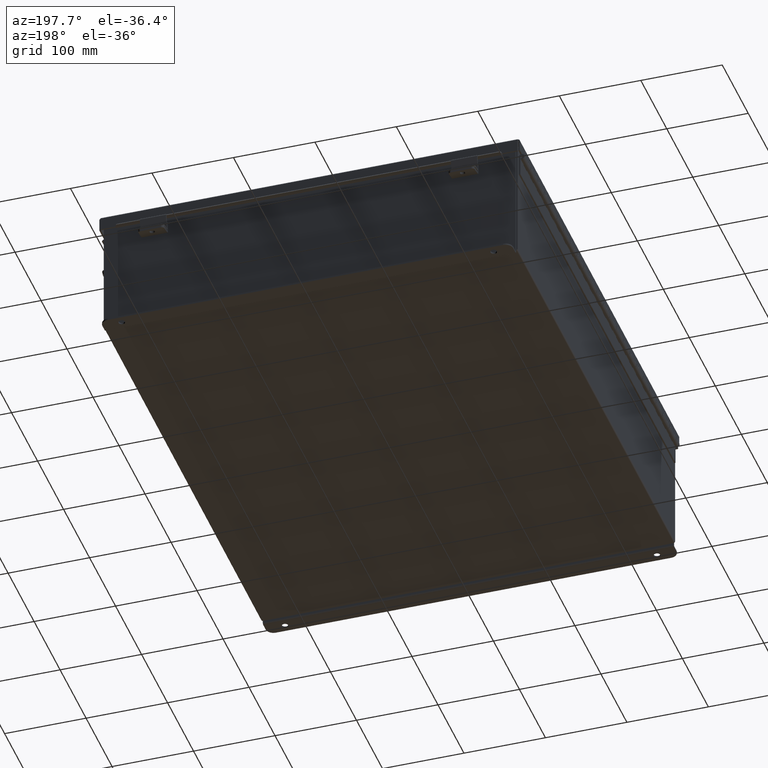
[diagram: clean part render]
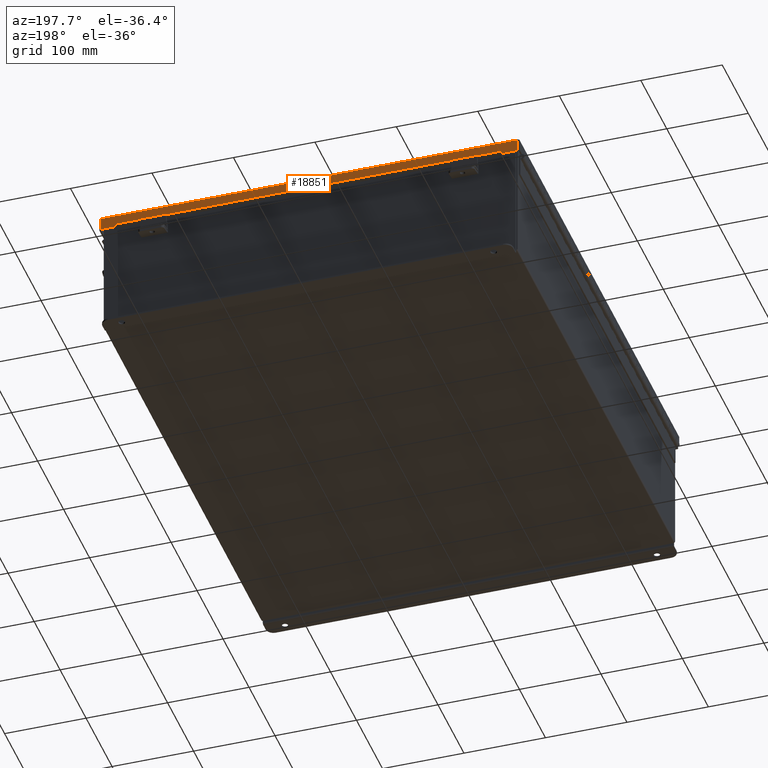
[diagram: same view with one face highlighted and labeled with its STEP entity id]
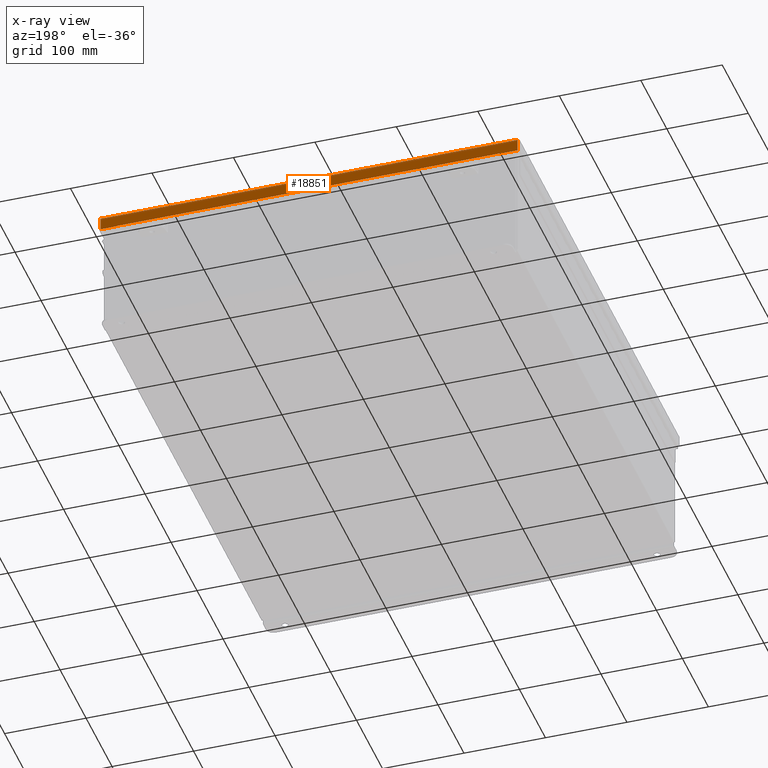
[diagram: x-ray of the same camera — body ghosted, the highlighted face saturated]
A machine part, auxiliary view. The second image highlights one B-rep face of the part: STEP entity #18851.
The next image is the same camera in x-ray: the body ghosted, the highlighted face saturated — about 0% of this face is hidden behind the body in this view.
In plain terms, the highlighted planar face has unit normal (-0, -1, -0).
Its self-contained STEP definition (entity closure, byte-faithful):
#974 = DIRECTION ( 'NONE',  ( 0.0000000000000000000, -3.569293475308526100E-015, -1.000000000000000000 ) ) ;
#1457 = CARTESIAN_POINT ( 'NONE',  ( -2.058720648025389000E-018, 12.15625000000000200, 0.6122999999999997300 ) ) ;
#1652 = VERTEX_POINT ( 'NONE', #7545 ) ;
#1768 = EDGE_CURVE ( 'NONE', #18719, #12512, #19920, .T. ) ;
#2740 = CARTESIAN_POINT ( 'NONE',  ( -10.07447893218813200, 12.15625000000000000, -4.365003746523085300E-014 ) ) ;
#2760 = PLANE ( 'NONE',  #18540 ) ;
#3041 = EDGE_CURVE ( 'NONE', #11271, #21290, #11700, .T. ) ;
#3096 = VECTOR ( 'NONE', #14017, 39.37007874015748100 ) ;
#3362 = ORIENTED_EDGE ( 'NONE', *, *, #1768, .F. ) ;
#3435 = VERTEX_POINT ( 'NONE', #7606 ) ;
#3632 = DIRECTION ( 'NONE',  ( -0.0000000000000000000, 3.569293475308526100E-015, 1.000000000000000000 ) ) ;
#4406 = LINE ( 'NONE', #1457, #9395 ) ;
#4548 = EDGE_CURVE ( 'NONE', #11271, #3435, #12947, .T. ) ;
#4570 = CARTESIAN_POINT ( 'NONE',  ( 9.324478932188135600, 12.15625000000000400, 0.5967115427318809800 ) ) ;
#4646 = DIRECTION ( 'NONE',  ( -1.000000000000000000, -0.0000000000000000000, -0.0000000000000000000 ) ) ;
#4665 = ORIENTED_EDGE ( 'NONE', *, *, #20716, .F. ) ;
#4988 = CARTESIAN_POINT ( 'NONE',  ( -2.058720648025389000E-018, 12.15625000000000200, 0.6122999999999997300 ) ) ;
#5220 = CARTESIAN_POINT ( 'NONE',  ( -10.07447893218813200, 12.15625000000000200, 0.6122999999999997300 ) ) ;
#5343 = ORIENTED_EDGE ( 'NONE', *, *, #16117, .T. ) ;
#5767 = ORIENTED_EDGE ( 'NONE', *, *, #3041, .T. ) ;
#6229 = EDGE_CURVE ( 'NONE', #12512, #1652, #9423, .T. ) ;
#6679 = DIRECTION ( 'NONE',  ( 7.009925220121361000E-014, 1.401985044024272200E-013, -1.000000000000000000 ) ) ;
#6790 = VECTOR ( 'NONE', #15788, 39.37007874015748100 ) ;
#6870 = EDGE_CURVE ( 'NONE', #22449, #18719, #16765, .T. ) ;
#7048 = CARTESIAN_POINT ( 'NONE',  ( 9.324478932188135600, 12.15625000000000200, 0.6122999999999997300 ) ) ;
#7545 = CARTESIAN_POINT ( 'NONE',  ( -9.324478932188130300, 12.15625000000000200, 0.6122999999999997300 ) ) ;
#7606 = CARTESIAN_POINT ( 'NONE',  ( 10.07447893218813600, 12.15625000000000000, 0.01299999999999983600 ) ) ;
#8372 = CARTESIAN_POINT ( 'NONE',  ( 1.458864787813727200E-031, 12.15625000000000000, -4.365003746523085300E-014 ) ) ;
#8475 = DIRECTION ( 'NONE',  ( -7.009925220121084600E-014, -1.401985044024216900E-013, 1.000000000000000000 ) ) ;
#8532 = CARTESIAN_POINT ( 'NONE',  ( 9.324478932188135600, 12.15625000000000200, 0.6122999999999998400 ) ) ;
#9395 = VECTOR ( 'NONE', #20046, 39.37007874015748100 ) ;
#9423 = LINE ( 'NONE', #17729, #23655 ) ;
#9475 = VECTOR ( 'NONE', #4646, 39.37007874015748100 ) ;
#11271 = VERTEX_POINT ( 'NONE', #13255 ) ;
#11700 = LINE ( 'NONE', #2740, #6790 ) ;
#11827 = VECTOR ( 'NONE', #6679, 39.37007874015748100 ) ;
#12088 = DIRECTION ( 'NONE',  ( -1.200094426993297800E-032, -1.000000000000000000, 3.569293475308526100E-015 ) ) ;
#12512 = VERTEX_POINT ( 'NONE', #13280 ) ;
#12947 = LINE ( 'NONE', #21357, #3096 ) ;
#13255 = CARTESIAN_POINT ( 'NONE',  ( -10.07447893218813200, 12.15625000000000000, 0.01299999999999984700 ) ) ;
#13280 = CARTESIAN_POINT ( 'NONE',  ( -9.324478932188130300, 12.15625000000000200, 0.5967115427318809800 ) ) ;
#14017 = DIRECTION ( 'NONE',  ( 1.000000000000000000, -1.200094426993297800E-032, 4.190107296696742600E-047 ) ) ;
#14061 = LINE ( 'NONE', #4988, #22801 ) ;
#14687 = VECTOR ( 'NONE', #3632, 39.37007874015748100 ) ;
#14926 = ORIENTED_EDGE ( 'NONE', *, *, #22444, .T. ) ;
#15788 = DIRECTION ( 'NONE',  ( 0.0000000000000000000, 3.569293475308526100E-015, 1.000000000000000000 ) ) ;
#16117 = EDGE_CURVE ( 'NONE', #21290, #1652, #14061, .T. ) ;
#16233 = VERTEX_POINT ( 'NONE', #23855 ) ;
#16765 = LINE ( 'NONE', #8532, #11827 ) ;
#17157 = ORIENTED_EDGE ( 'NONE', *, *, #6229, .F. ) ;
#17729 = CARTESIAN_POINT ( 'NONE',  ( -9.324478932188130300, 12.15625000000000400, 0.5967115427318809800 ) ) ;
#18214 = FACE_OUTER_BOUND ( 'NONE', #22677, .T. ) ;
#18540 = AXIS2_PLACEMENT_3D ( 'NONE', #8372, #12088, #974 ) ;
#18719 = VERTEX_POINT ( 'NONE', #19242 ) ;
#18851 = ADVANCED_FACE ( 'NONE', ( #18214 ), #2760, .F. ) ;
#19242 = CARTESIAN_POINT ( 'NONE',  ( 9.324478932188135600, 12.15625000000000400, 0.5967115427318809800 ) ) ;
#19920 = LINE ( 'NONE', #4570, #9475 ) ;
#20046 = DIRECTION ( 'NONE',  ( 1.000000000000000000, 0.0000000000000000000, 3.362274453740632500E-018 ) ) ;
#20211 = LINE ( 'NONE', #20296, #14687 ) ;
#20296 = CARTESIAN_POINT ( 'NONE',  ( 10.07447893218813600, 12.15625000000000000, -2.666262226055474600E-016 ) ) ;
#20716 = EDGE_CURVE ( 'NONE', #3435, #16233, #20211, .T. ) ;
#21290 = VERTEX_POINT ( 'NONE', #5220 ) ;
#21357 = CARTESIAN_POINT ( 'NONE',  ( 10.15625000000000200, 12.15625000000000000, 0.01299999999999984700 ) ) ;
#21905 = ORIENTED_EDGE ( 'NONE', *, *, #6870, .F. ) ;
#22444 = EDGE_CURVE ( 'NONE', #22449, #16233, #4406, .T. ) ;
#22449 = VERTEX_POINT ( 'NONE', #7048 ) ;
#22677 = EDGE_LOOP ( 'NONE', ( #21905, #14926, #4665, #23447, #5767, #5343, #17157, #3362 ) ) ;
#22801 = VECTOR ( 'NONE', #23532, 39.37007874015748100 ) ;
#23447 = ORIENTED_EDGE ( 'NONE', *, *, #4548, .F. ) ;
#23532 = DIRECTION ( 'NONE',  ( 1.000000000000000000, 0.0000000000000000000, 3.362274453740632500E-018 ) ) ;
#23655 = VECTOR ( 'NONE', #8475, 39.37007874015748100 ) ;
#23855 = CARTESIAN_POINT ( 'NONE',  ( 10.07447893218813600, 12.15625000000000200, 0.6122999999999997300 ) ) ;